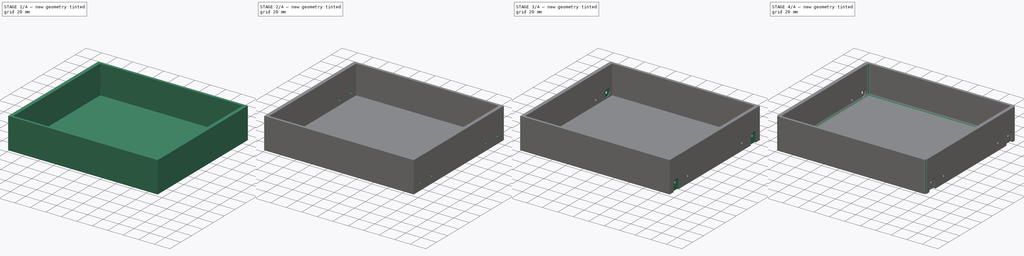
[diagram: build sequence overview — one tinted view per stage of 4, left to right]
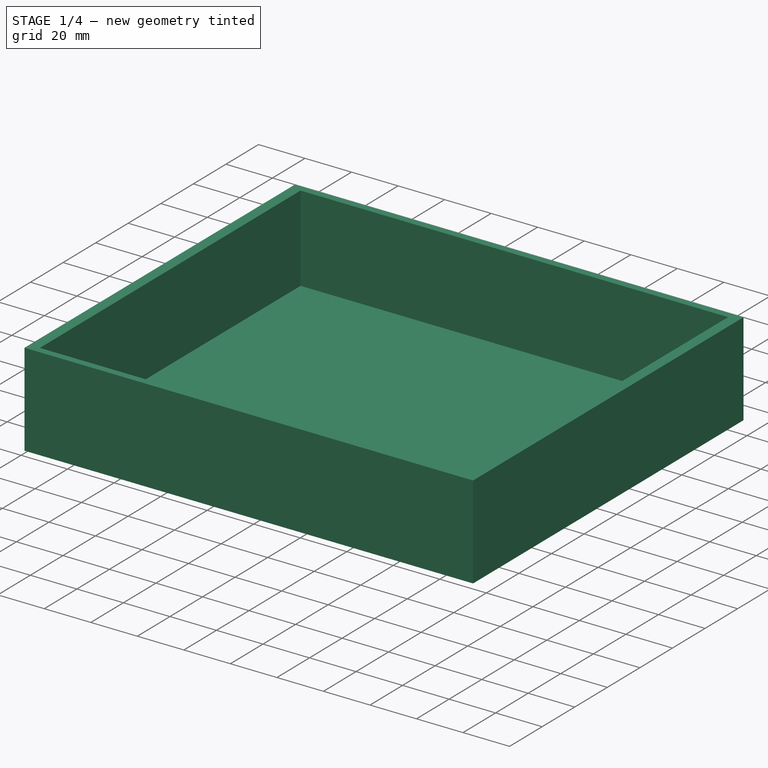
[diagram: stage 1 of 4 — iso view after this stage's code; geometry added in this stage tinted green]
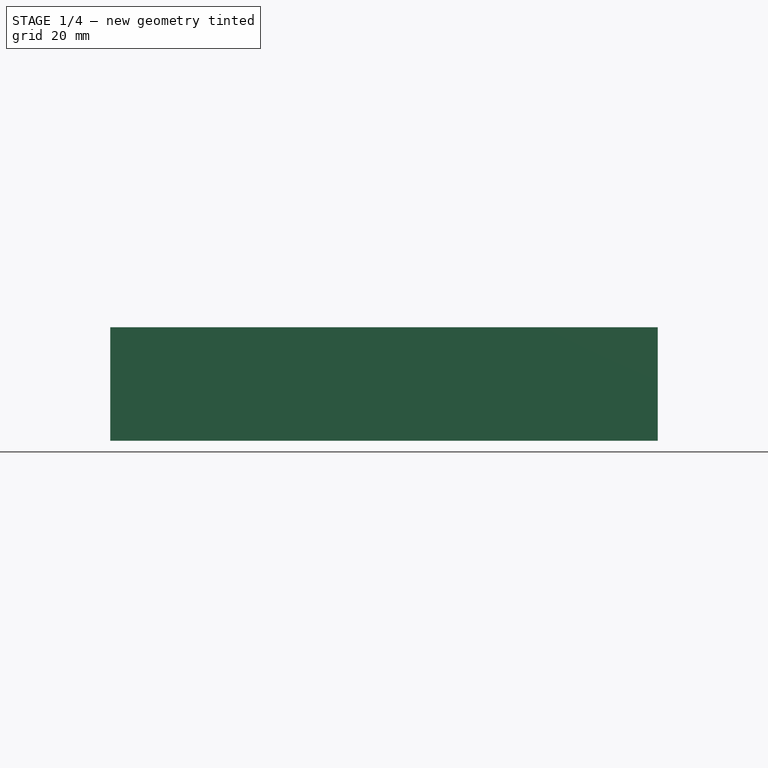
[diagram: stage 1 of 4 — front view after this stage's code; geometry added in this stage tinted green]
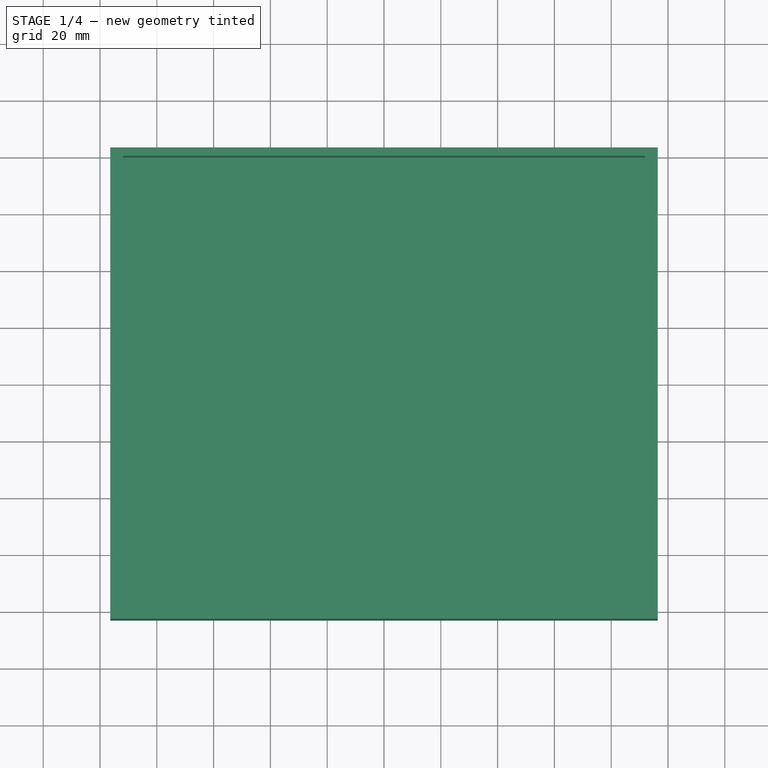
[diagram: stage 1 of 4 — top view after this stage's code; geometry added in this stage tinted green]
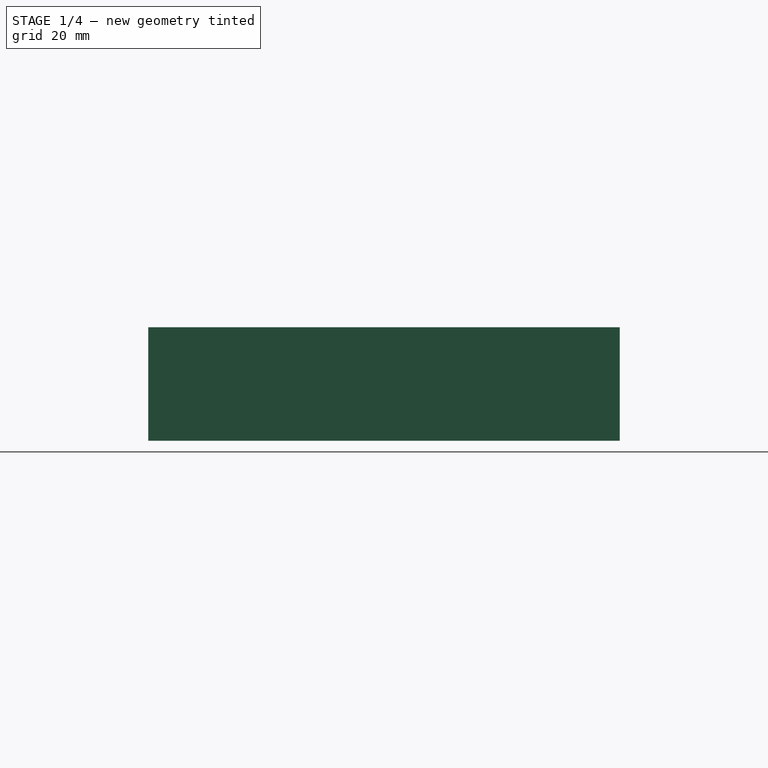
[diagram: stage 1 of 4 — right view after this stage's code; geometry added in this stage tinted green]
FCSTD DOCUMENT  (FreeCAD 0.21R33771 (Git))
Label: caixa-de-carga
License: All rights reserved
LicenseURL: https://en.wikipedia.org/wiki/All_rights_reserved
objects: Sketcher::SketchObject×7, PartDesign::Pocket×6, PartDesign::Pad×1, PartDesign::Fillet×1, PartDesign::Chamfer×1, PartDesign::Body×1
note: 26 computed .brp shape members not serialized (recipe doc carries the construction recipe); baked Part::Feature solids carry a one-line shape summary decoded from their .brp

FEATURE [Sketcher::SketchObject] Sketch
  FullyConstrained = true
  MapMode = 5
  Support = -> [XY_Plane]
  sketch-geometry (4):
    g0: LineSegment StartX=-96.4 StartY=83 StartZ=0 EndX=96.4 EndY=83 EndZ=0
    g1: LineSegment StartX=96.4 StartY=83 StartZ=0 EndX=96.4 EndY=-83 EndZ=0
    g2: LineSegment StartX=96.4 StartY=-83 StartZ=0 EndX=-96.4 EndY=-83 EndZ=0
    g3: LineSegment StartX=-96.4 StartY=-83 StartZ=0 EndX=-96.4 EndY=83 EndZ=0
  constraints (10):
    c: Coincident(g0,g1)
    c: Coincident(g1,g2)
    c: Coincident(g2,g3)
    c: Coincident(g3,g0)
    c: Horizontal(g2)
    c: Vertical(g1)
    c: Symmetric(g0,g0,g-2)
    c: Symmetric(g2,g0,g-1)
    c: DistanceY(g1,g1) = 166
    c: DistanceX(g0,g0) = 192.8
FEATURE [PartDesign::Pad] Pad
  Direction = (0,0,1)
  Length = 40
  Length2 = 10
  Profile = -> Sketch
  ReferenceAxis = -> Sketch [N_Axis]
  Type = 0
FEATURE [Sketcher::SketchObject] Sketch001
  ExternalGeometry = -> [Pad]
  FullyConstrained = true
  MapMode = 5
  Placement = pos=(0,0,40) rot=(0,0,1;0rad)
  Support = -> [Pad]
  sketch-geometry (4):
    g0: LineSegment StartX=-91.9 StartY=80 StartZ=0 EndX=91.9 EndY=80 EndZ=0
    g1: LineSegment StartX=91.9 StartY=80 StartZ=0 EndX=91.9 EndY=-80 EndZ=0
    g2: LineSegment StartX=91.9 StartY=-80 StartZ=0 EndX=-91.9 EndY=-80 EndZ=0
    g3: LineSegment StartX=-91.9 StartY=-80 StartZ=0 EndX=-91.9 EndY=80 EndZ=0
  constraints (10):
    c: Coincident(g0,g1)
    c: Coincident(g1,g2)
    c: Coincident(g2,g3)
    c: Coincident(g3,g0)
    c: Horizontal(g2)
    c: Vertical(g1)
    c: Symmetric(g0,g0,g-2)
    c: Symmetric(g2,g0,g-1)
    c: DistanceY(g0,g-3) = 3
    c: DistanceX(g-3,g0) = 4.5
FEATURE [PartDesign::Pocket] Pocket
  BaseFeature = -> Pad
  Direction = (0,0,-1)
  Length = 37
  Length2 = 5
  Profile = -> Sketch001
  ReferenceAxis = -> Sketch001 [N_Axis]
  Type = 0
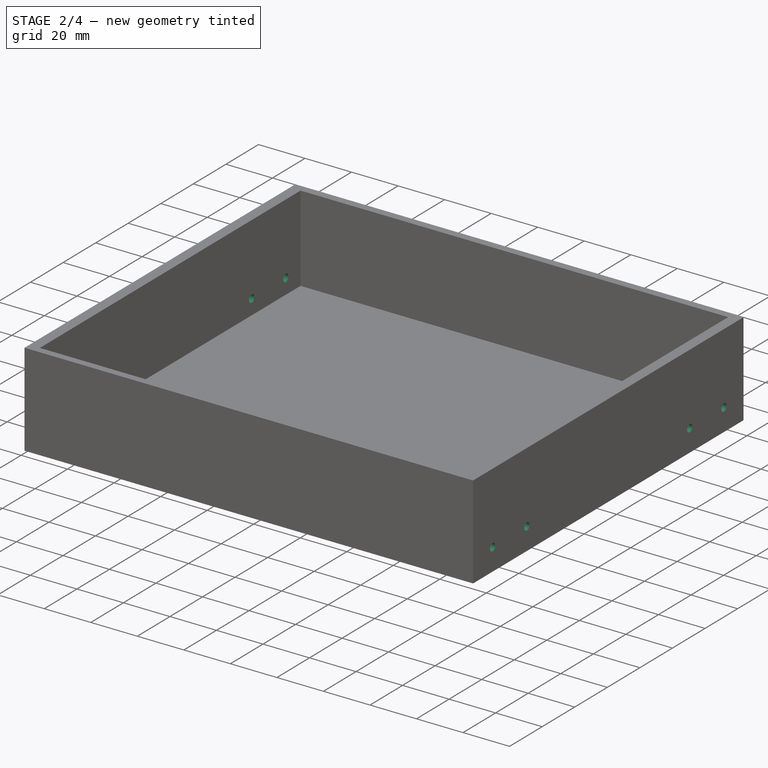
[diagram: stage 2 of 4 — iso view after this stage's code; geometry added in this stage tinted green]
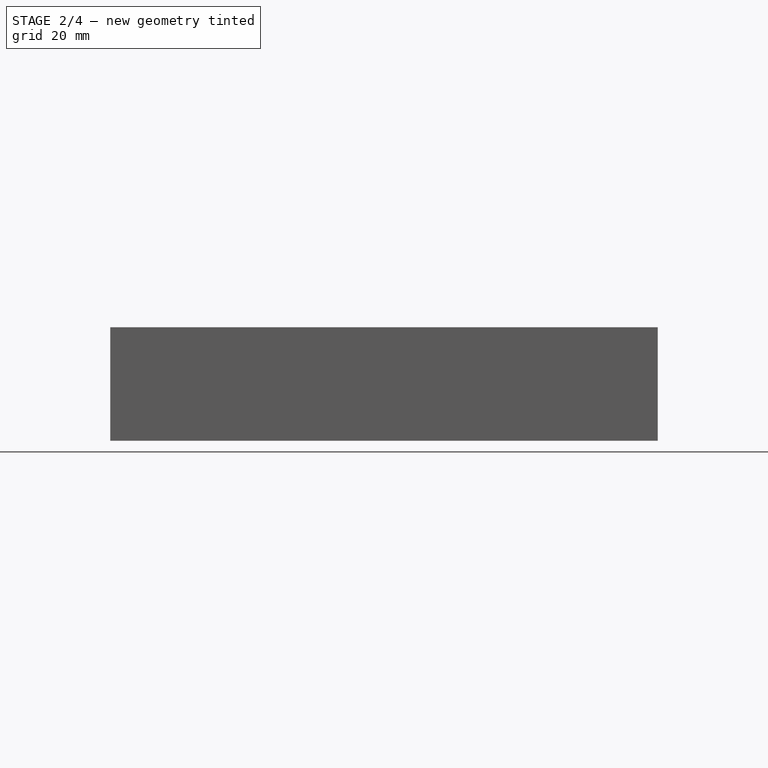
[diagram: stage 2 of 4 — front view after this stage's code; geometry added in this stage tinted green]
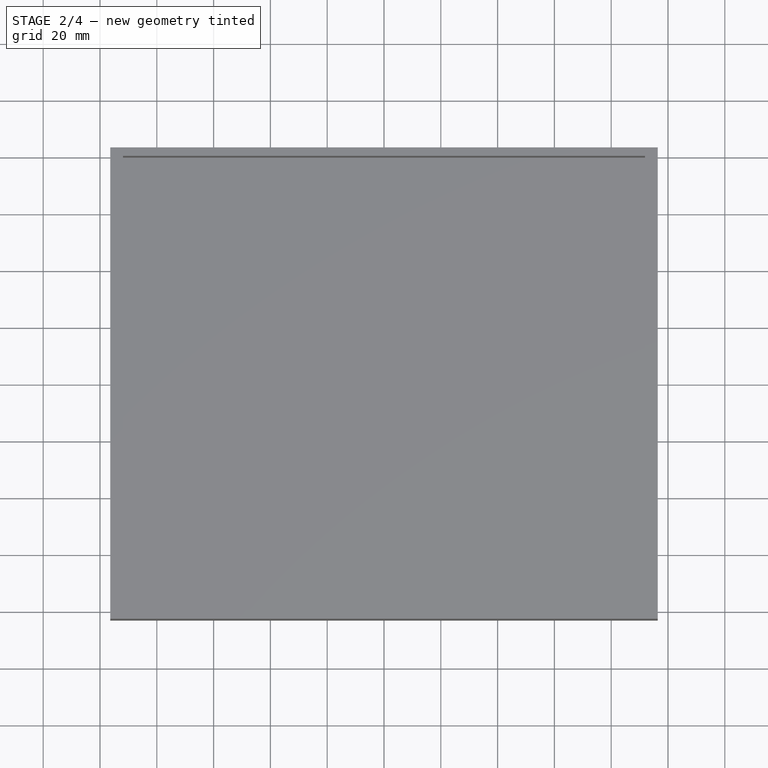
[diagram: stage 2 of 4 — top view after this stage's code; geometry added in this stage tinted green]
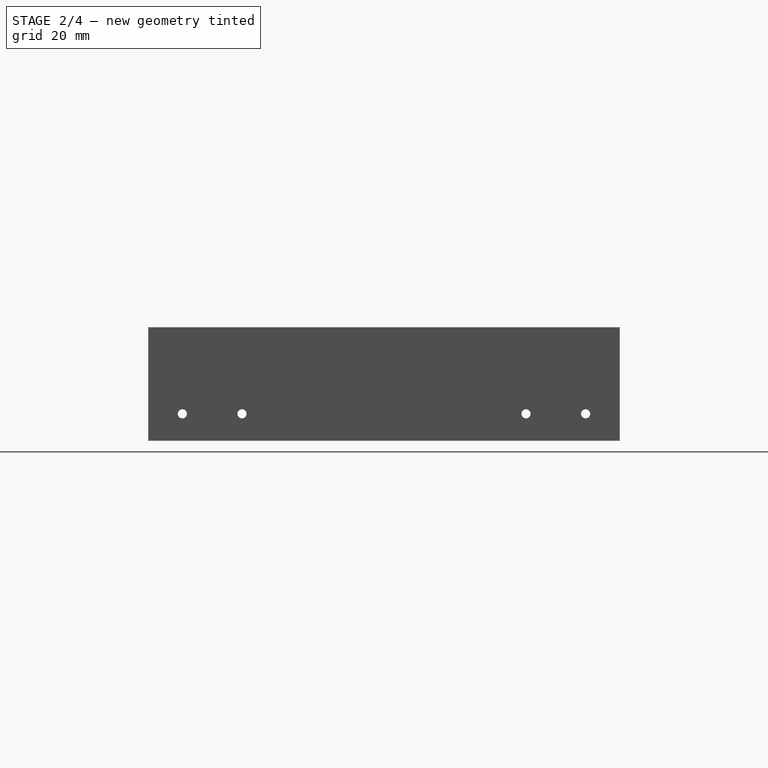
[diagram: stage 2 of 4 — right view after this stage's code; geometry added in this stage tinted green]
FEATURE [Sketcher::SketchObject] Sketch002
  ExternalGeometry = -> [Pocket]
  FullyConstrained = true
  MapMode = 5
  Placement = pos=(96.4,0,0) rot=(0.57735,0.57735,0.57735;2.0944rad)
  Support = -> [Pocket]
  sketch-geometry (20):
    g0: LineSegment StartX=-83 StartY=40 StartZ=0 EndX=83 EndY=40 EndZ=0
    g1: LineSegment StartX=83 StartY=40 StartZ=0 EndX=83 EndY=20 EndZ=0
    g2: LineSegment StartX=83 StartY=20 StartZ=0 EndX=-83 EndY=20 EndZ=0
    g3: LineSegment StartX=-83 StartY=20 StartZ=0 EndX=-83 EndY=40 EndZ=0
    g4: LineSegment StartX=-83 StartY=40 StartZ=0 EndX=-38 EndY=40 EndZ=0
    g5: LineSegment StartX=-38 StartY=40 StartZ=0 EndX=-38 EndY=20 EndZ=0
    g6: LineSegment StartX=-38 StartY=20 StartZ=0 EndX=-83 EndY=20 EndZ=0
    g7: LineSegment StartX=-83 StartY=20 StartZ=0 EndX=-83 EndY=40 EndZ=0
    g8: LineSegment StartX=38 StartY=40 StartZ=0 EndX=83 EndY=40 EndZ=0
    g9: LineSegment StartX=83 StartY=40 StartZ=0 EndX=83 EndY=20 EndZ=0
    g10: LineSegment StartX=83 StartY=20 StartZ=0 EndX=38 EndY=20 EndZ=0
    g11: LineSegment StartX=38 StartY=20 StartZ=0 EndX=38 EndY=40 EndZ=0
    g12: LineSegment StartX=-60.5 StartY=40 StartZ=0 EndX=-60.5 EndY=0 EndZ=0
    g13: LineSegment StartX=60.5 StartY=40 StartZ=0 EndX=60.5 EndY=0 EndZ=0
    g14: Circle CenterX=-71 CenterY=9.5 CenterZ=0 NormalX=0 NormalY=0 NormalZ=1 AngleXU=0 Radius=1.6
    g15: Circle CenterX=-50 CenterY=9.5 CenterZ=0 NormalX=0 NormalY=0 NormalZ=1 AngleXU=0 Radius=1.6
    g16: Circle CenterX=50 CenterY=9.5 CenterZ=0 NormalX=0 NormalY=0 NormalZ=1 AngleXU=0 Radius=1.6
    g17: Circle CenterX=71 CenterY=9.5 CenterZ=0 NormalX=0 NormalY=0 NormalZ=1 AngleXU=0 Radius=1.6
    g18: LineSegment StartX=-71 StartY=9.5 StartZ=0 EndX=-50 EndY=9.5 EndZ=0
    g19: LineSegment StartX=50 StartY=9.5 StartZ=0 EndX=71 EndY=9.5 EndZ=0
  constraints (52):
    c: Coincident(g0,g1)
    c: Coincident(g1,g2)
    c: Coincident(g2,g3)
    c: Coincident(g3,g0)
    c: Horizontal(g2)
    c: Vertical(g1)
    c: Vertical(g3)
    c: Symmetric(g0,g0,g-2)
    c: Coincident(g0,g-3)
    c: DistanceY(g3,g3) = 20
    c: Coincident(g4,g5)
    c: Coincident(g5,g6)
    c: Coincident(g6,g7)
    c: Coincident(g7,g4)
    c: Horizontal(g4)
    c: Horizontal(g6)
    c: Vertical(g5)
    c: Vertical(g7)
    c: Coincident(g8,g9)
    c: Coincident(g9,g10)
    c: Coincident(g10,g11)
    c: Coincident(g11,g8)
    c: Horizontal(g8)
    c: Horizontal(g10)
    c: Vertical(g9)
    c: Vertical(g11)
    c: Equal(g11,g7)
    c: Equal(g7,g3)
    c: Equal(g4,g8)
    c: DistanceX(g8,g8) = 45
    c: Coincident(g6,g2)
    c: Coincident(g9,g1)
    c: Symmetric(g2,g5,g12)
    c: Symmetric(g1,g10,g13)
    c: PointOnObject(g12,g-1)
    c: PointOnObject(g13,g-1)
    c: PointOnObject(g13,g0)
    c: PointOnObject(g12,g0)
    c: Equal(g17,g16)
    c: Equal(g16,g15)
    c: Equal(g15,g14)
    c: Diameter(g17) = 3.2
    c: Symmetric(g17,g16,g13)
    c: Symmetric(g14,g15,g12)
    c: Horizontal(g15,g16)
    c: Coincident(g19,g17)
    c: Coincident(g19,g16)
    c: Coincident(g18,g14)
    c: Coincident(g18,g15)
    c: DistanceY(g14,g2) = 10.5
    c: DistanceX(g18,g18) = 21
    c: Equal(g18,g19)
FEATURE [PartDesign::Pocket] Pocket001
  BaseFeature = -> Pocket
  Direction = (-1,0,0)
  Length = 5
  Length2 = 5
  Profile = -> Sketch002
  ReferenceAxis = -> Sketch002 [N_Axis]
  Type = 1
FEATURE [Sketcher::SketchObject] Sketch003
  ExternalGeometry = -> [Pocket001]
  FullyConstrained = true
  MapMode = 5
  Placement = pos=(-96.4,0,0) rot=(0.57735,-0.57735,-0.57735;2.0944rad)
  Support = -> [Pocket001]
  sketch-geometry (9):
    g0: ArcOfCircle CenterX=-71 CenterY=9.5 CenterZ=0 NormalX=0 NormalY=0 NormalZ=1 AngleXU=0 Radius=4.8 StartAngle=1e-16 EndAngle=3.14159
    g1: ArcOfCircle CenterX=-71 CenterY=-4.8 CenterZ=0 NormalX=0 NormalY=0 NormalZ=1 AngleXU=0 Radius=4.8 StartAngle=3.14159 EndAngle=6.28319
    g2: LineSegment StartX=-75.8 StartY=9.5 StartZ=0 EndX=-75.8 EndY=-4.8 EndZ=0
    g3: LineSegment StartX=-66.2 StartY=-4.8 StartZ=0 EndX=-66.2 EndY=9.5 EndZ=0
    g4: ArcOfCircle CenterX=71 CenterY=9.5 CenterZ=0 NormalX=0 NormalY=0 NormalZ=1 AngleXU=0 Radius=4.8 StartAngle=0 EndAngle=3.14159
    g5: ArcOfCircle CenterX=71 CenterY=-4.8 CenterZ=0 NormalX=0 NormalY=0 NormalZ=1 AngleXU=0 Radius=4.8 StartAngle=3.14159 EndAngle=6.28319
    g6: LineSegment StartX=66.2 StartY=9.5 StartZ=0 EndX=66.2 EndY=-4.8 EndZ=0
    g7: LineSegment StartX=75.8 StartY=-4.8 StartZ=0 EndX=75.8 EndY=9.5 EndZ=0
    g8: Circle CenterX=71 CenterY=9.5 CenterZ=0 NormalX=0 NormalY=0 NormalZ=1 AngleXU=0 Radius=4.8
  constraints (20):
    c: Tangent(g0,g2) = -1.5708
    c: Tangent(g2,g1) = -1.5708
    c: Tangent(g1,g3) = -1.5708
    c: Tangent(g3,g0) = -1.5708
    c: Equal(g0,g1)
    c: Coincident(g0,g-3)
    c: Vertical(g2)
    c: Tangent(g4,g6) = -1.5708
    c: Tangent(g6,g5) = -1.5708
    c: Tangent(g5,g7) = -1.5708
    c: Tangent(g7,g4) = -1.5708
    c: Equal(g4,g5)
    c: Coincident(g4,g-4)
    c: Vertical(g6)
    c: Horizontal(g5,g1)
    c: Equal(g1,g5)
    c: Coincident(g8,g4)
    c: Equal(g4,g8)
    c: Diameter(g8) = 9.6
    c: Tangent(g5,g-1)
FEATURE [PartDesign::Pocket] Pocket002
  BaseFeature = -> Pocket001
  Direction = (1,0,0)
  Length = 2.6
  Length2 = 5
  Profile = -> Sketch003
  ReferenceAxis = -> Sketch003 [N_Axis]
  Type = 0
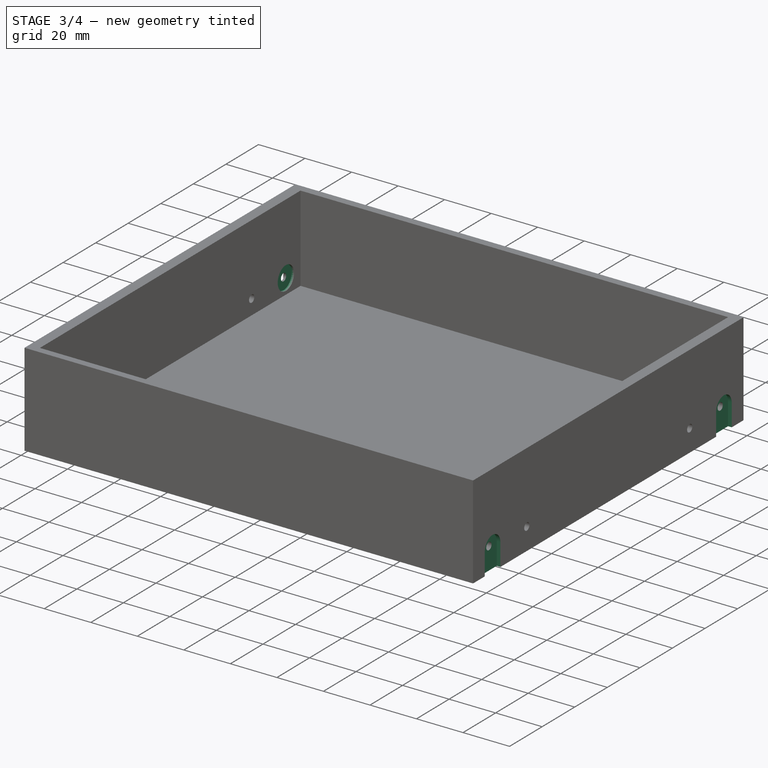
[diagram: stage 3 of 4 — iso view after this stage's code; geometry added in this stage tinted green]
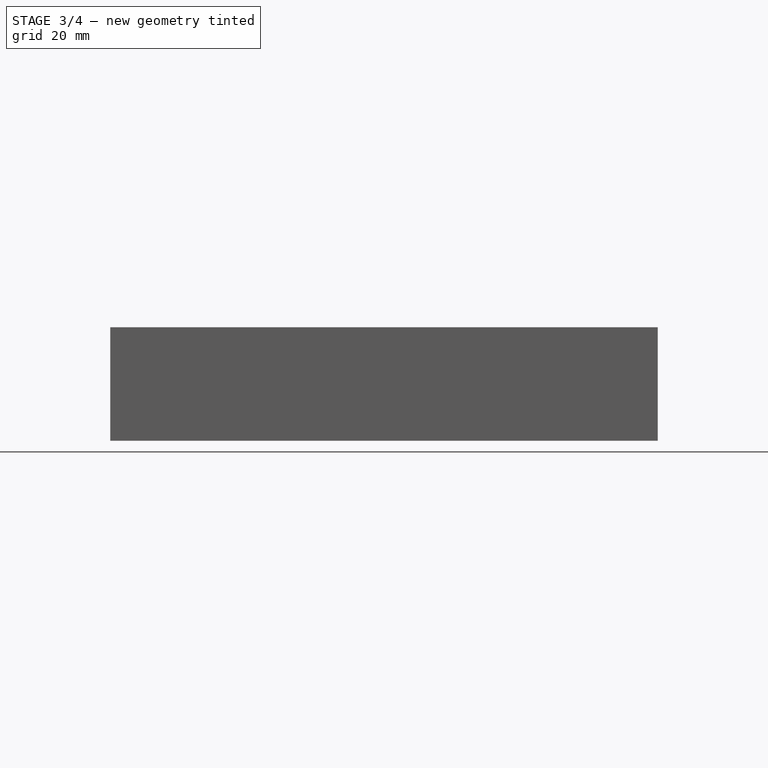
[diagram: stage 3 of 4 — front view after this stage's code; geometry added in this stage tinted green]
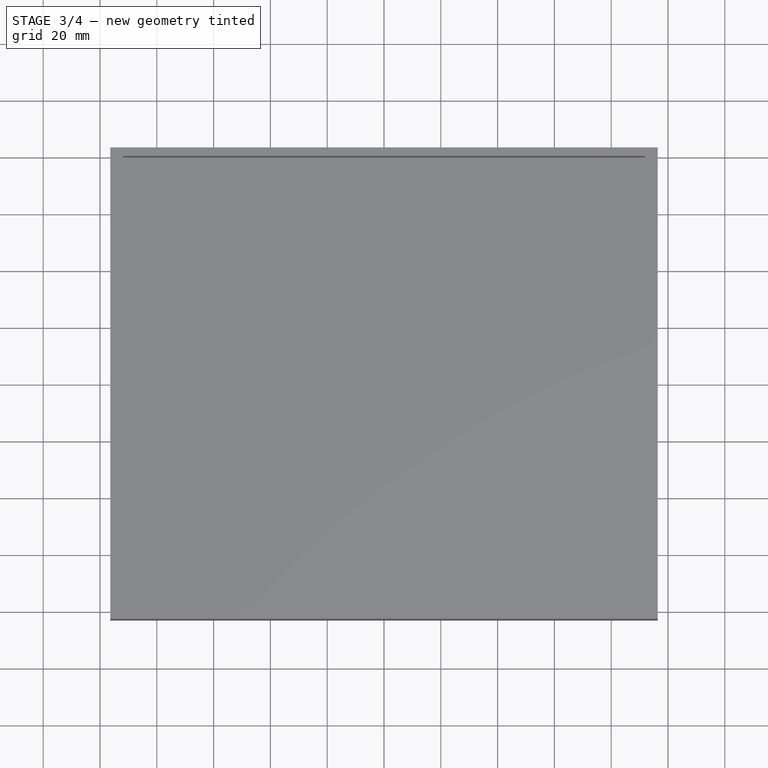
[diagram: stage 3 of 4 — top view after this stage's code; geometry added in this stage tinted green]
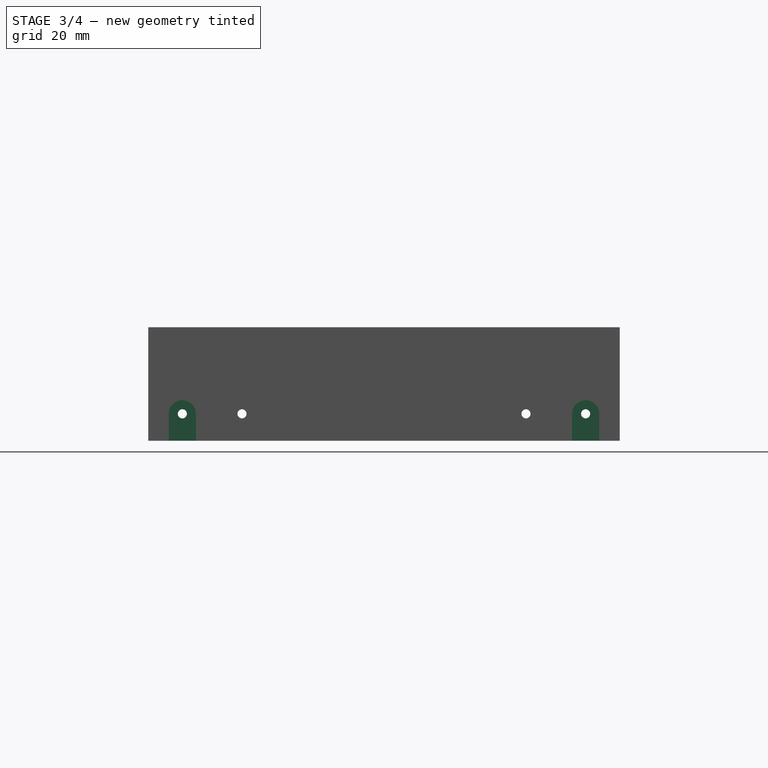
[diagram: stage 3 of 4 — right view after this stage's code; geometry added in this stage tinted green]
FEATURE [Sketcher::SketchObject] Sketch004
  ExternalGeometry = -> [Pocket002]
  FullyConstrained = true
  MapMode = 5
  Placement = pos=(-91.9,0,0) rot=(0.57735,0.57735,0.57735;2.0944rad)
  Support = -> [Pocket002]
  sketch-geometry (2):
    g0: Circle CenterX=-71 CenterY=9.5 CenterZ=0 NormalX=0 NormalY=0 NormalZ=1 AngleXU=0 Radius=5
    g1: Circle CenterX=71 CenterY=9.5 CenterZ=0 NormalX=0 NormalY=0 NormalZ=1 AngleXU=0 Radius=5
  constraints (4):
    c: Coincident(g0,g-4)
    c: Coincident(g1,g-3)
    c: Equal(g0,g1)
    c: Diameter(g1) = 10
FEATURE [PartDesign::Pocket] Pocket003
  BaseFeature = -> Pocket002
  Direction = (-1,0,0)
  Length = 1
  Length2 = 5
  Profile = -> Sketch004
  ReferenceAxis = -> Sketch004 [N_Axis]
  Type = 0
FEATURE [Sketcher::SketchObject] Sketch005
  ExternalGeometry = -> [Pocket003]
  FullyConstrained = true
  MapMode = 5
  Placement = pos=(91.9,0,0) rot=(0.57735,-0.57735,-0.57735;2.0944rad)
  Support = -> [Pocket003]
  sketch-geometry (2):
    g0: Circle CenterX=-71 CenterY=9.5 CenterZ=0 NormalX=0 NormalY=0 NormalZ=1 AngleXU=0 Radius=5
    g1: Circle CenterX=71 CenterY=9.5 CenterZ=0 NormalX=0 NormalY=0 NormalZ=1 AngleXU=0 Radius=5
  constraints (4):
    c: Coincident(g0,g-3)
    c: Coincident(g1,g-4)
    c: Equal(g1,g-4)
    c: Equal(g-4,g0)
FEATURE [PartDesign::Pocket] Pocket004
  BaseFeature = -> Pocket003
  Direction = (1,0,0)
  Length = 1
  Length2 = 5
  Profile = -> Sketch005
  ReferenceAxis = -> Sketch005 [N_Axis]
  Type = 0
FEATURE [Sketcher::SketchObject] Sketch006
  ExternalGeometry = -> [Pocket004]
  FullyConstrained = true
  MapMode = 5
  Placement = pos=(96.4,0,0) rot=(0.57735,0.57735,0.57735;2.0944rad)
  Support = -> [Pocket004]
  sketch-geometry (8):
    g0: ArcOfCircle CenterX=-71 CenterY=9.5 CenterZ=0 NormalX=0 NormalY=0 NormalZ=1 AngleXU=0 Radius=4.8 StartAngle=1e-16 EndAngle=3.14159
    g1: ArcOfCircle CenterX=-71 CenterY=-4.8 CenterZ=0 NormalX=0 NormalY=0 NormalZ=1 AngleXU=0 Radius=4.8 StartAngle=3.14159 EndAngle=6.28319
    g2: LineSegment StartX=-75.8 StartY=9.5 StartZ=0 EndX=-75.8 EndY=-4.8 EndZ=0
    g3: LineSegment StartX=-66.2 StartY=-4.8 StartZ=0 EndX=-66.2 EndY=9.5 EndZ=0
    g4: ArcOfCircle CenterX=71 CenterY=9.5 CenterZ=0 NormalX=0 NormalY=0 NormalZ=1 AngleXU=0 Radius=4.8 StartAngle=1.2e-15 EndAngle=3.14159
    g5: ArcOfCircle CenterX=71 CenterY=-4.8 CenterZ=0 NormalX=0 NormalY=0 NormalZ=1 AngleXU=0 Radius=4.8 StartAngle=3.14159 EndAngle=6.28319
    g6: LineSegment StartX=66.2 StartY=9.5 StartZ=0 EndX=66.2 EndY=-4.8 EndZ=0
    g7: LineSegment StartX=75.8 StartY=-4.8 StartZ=0 EndX=75.8 EndY=9.5 EndZ=0
  constraints (18):
    c: Tangent(g0,g2) = -1.5708
    c: Tangent(g2,g1) = -1.5708
    c: Tangent(g1,g3) = -1.5708
    c: Tangent(g3,g0) = -1.5708
    c: Equal(g0,g1)
    c: Coincident(g0,g-4)
    c: Tangent(g4,g6) = -1.5708
    c: Tangent(g6,g5) = -1.5708
    c: Tangent(g5,g7) = -1.5708
    c: Tangent(g7,g4) = -1.5708
    c: Equal(g4,g5)
    c: Coincident(g4,g-3)
    c: Vertical(g6)
    c: Vertical(g3)
    c: Equal(g-4,g0)
    c: Equal(g-3,g4)
    c: Tangent(g1,g-1)
    c: Tangent(g5,g-1)
FEATURE [PartDesign::Pocket] Pocket005
  BaseFeature = -> Pocket004
  Direction = (-1,0,0)
  Length = 1.6
  Length2 = 5
  Profile = -> Sketch006
  ReferenceAxis = -> Sketch006 [N_Axis]
  Type = 0
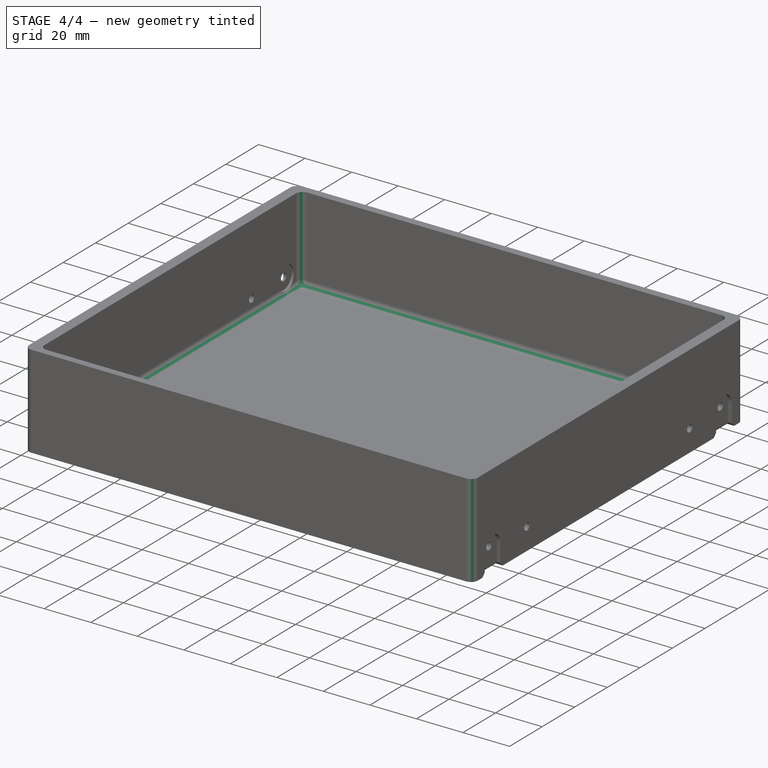
[diagram: stage 4 of 4 — iso view after this stage's code; geometry added in this stage tinted green]
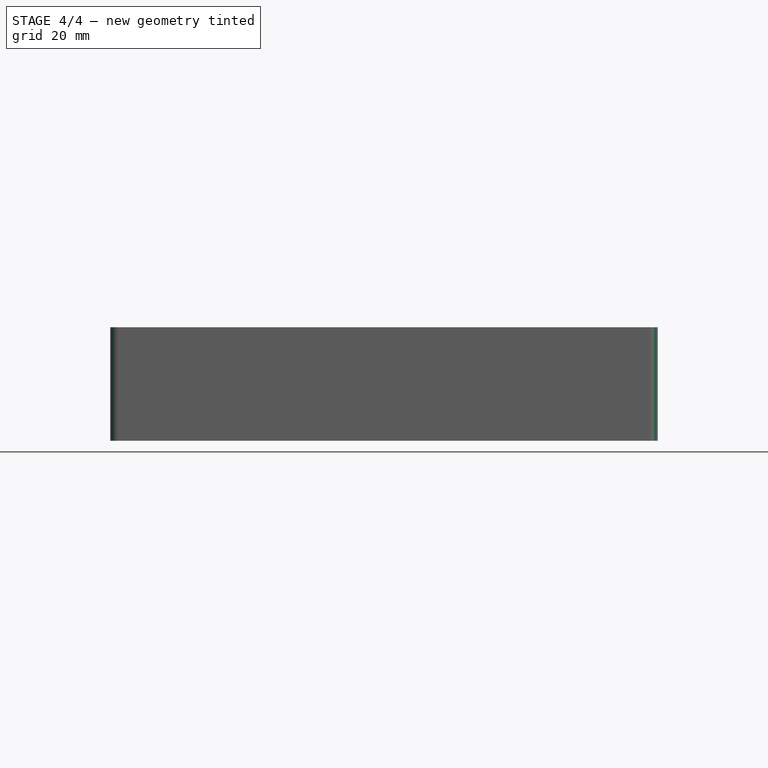
[diagram: stage 4 of 4 — front view after this stage's code; geometry added in this stage tinted green]
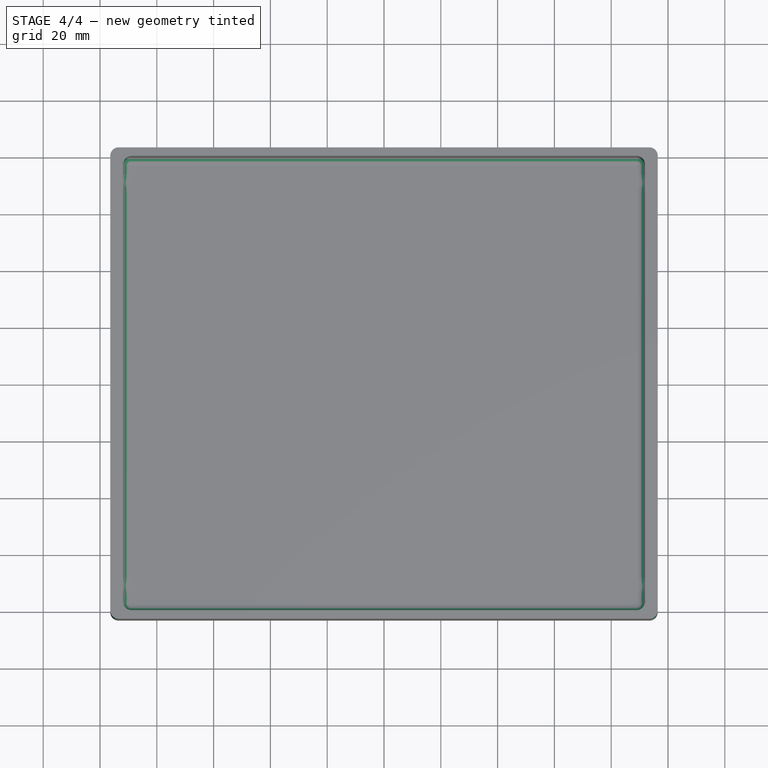
[diagram: stage 4 of 4 — top view after this stage's code; geometry added in this stage tinted green]
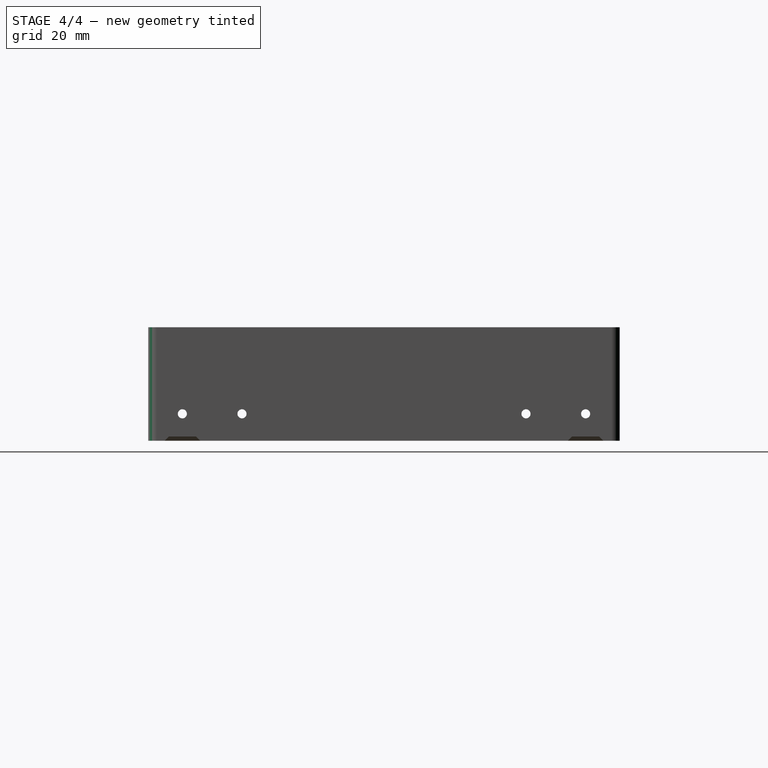
[diagram: stage 4 of 4 — right view after this stage's code; geometry added in this stage tinted green]
FEATURE [PartDesign::Fillet] Fillet
  Base = -> Pocket005 [Edge88,Edge83,Edge81,Edge86,Edge89,Edge87,Edge82,Edge92,Edge1,Edge15,Edge27,Edge2]
  BaseFeature = -> Pocket005
  Radius = 3
  SupportTransform = false
  UseAllEdges = false
FEATURE [PartDesign::Chamfer] Chamfer
  Angle = 45
  Base = -> Fillet [Edge19,Edge17,Edge21,Edge9,Edge11,Edge13,Edge20,Edge18,Edge22,Edge12,Edge14,Edge10]
  BaseFeature = -> Fillet
  ChamferType = 0
  FlipDirection = false
  Size = 1.5
  Size2 = 1
  SupportTransform = false
  UseAllEdges = false
FEATURE [PartDesign::Body] Body
  Group = -> [Sketch,Pad,Sketch001,Pocket,Sketch002,Pocket001,Sketch003,Pocket002,Sketch004,Pocket003,Sketch005,Pocket004,Sketch006,Pocket005,Fillet,Chamfer]
  Origin = -> Origin
  Tip = -> Chamfer
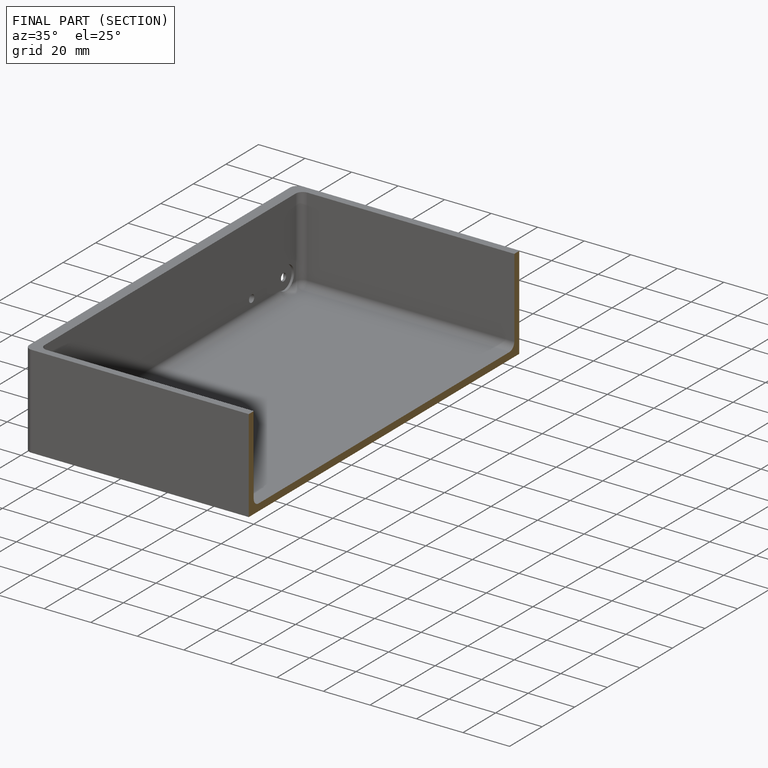
[diagram: finished part — half-section view (interior)]
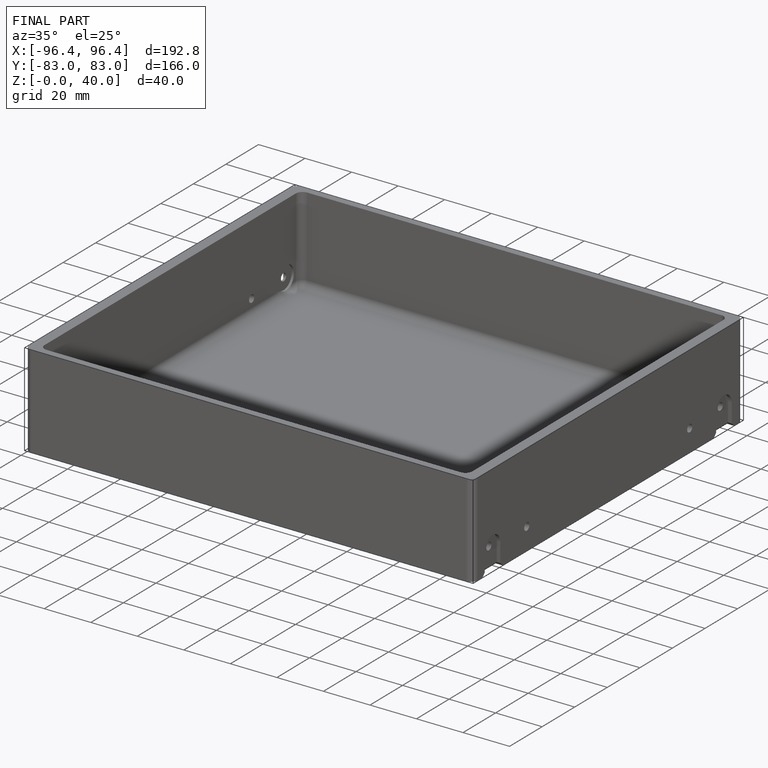
[diagram: finished part — iso view with bounding-box wireframe]
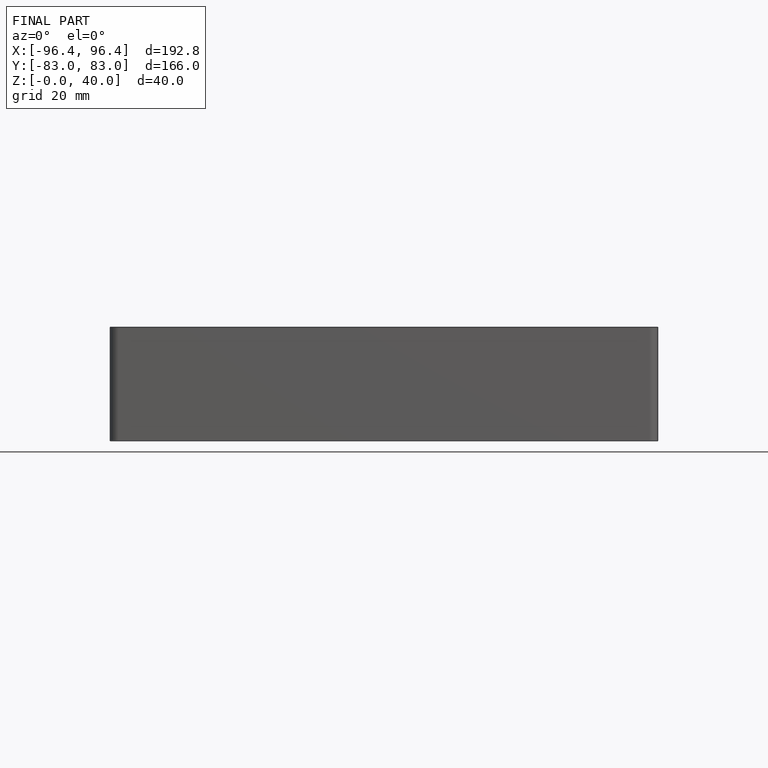
[diagram: finished part — front view with bounding-box wireframe]
